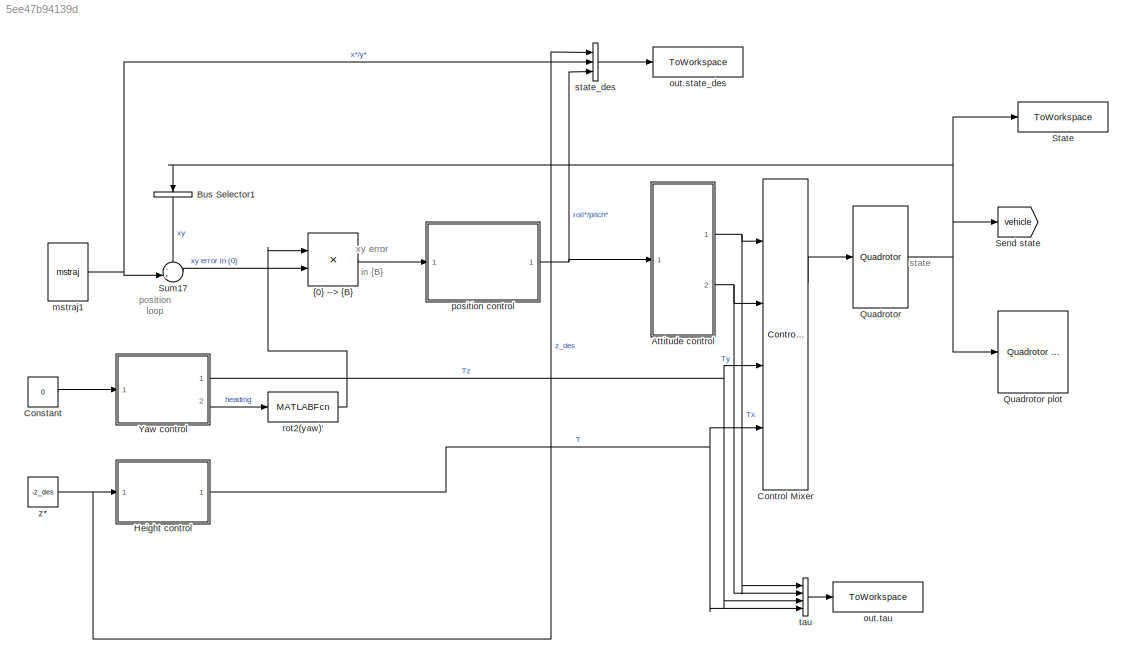
MODEL slx_5ee47b94139d
KIND model
CONFIG AbsTol = auto
CONFIG EnableMultiTasking = off
CONFIG FixedStep = auto
CONFIG InitFcn = Kp_yaw = 50;\nKd_yaw = 0.5;\nKp_height = 1000;\nKd_height = 0.1;\nKp_vel = 0.15;\nKd_vel = 0.85;\nKp_attitude = 2;\nKd_attitude = 0.3;\n\nz_des = 5;\n\nsample_interval = 0.05;\nmdl_quadrotor;
CONFIG MaxStep = auto
CONFIG MinStep = auto
CONFIG RelTol = 1e-3
CONFIG SampleTimeConstraint = Unconstrained
CONFIG SolverName = VariableStepAuto
CONFIG StartTime = 0.0
CONFIG StopTime = 119.35
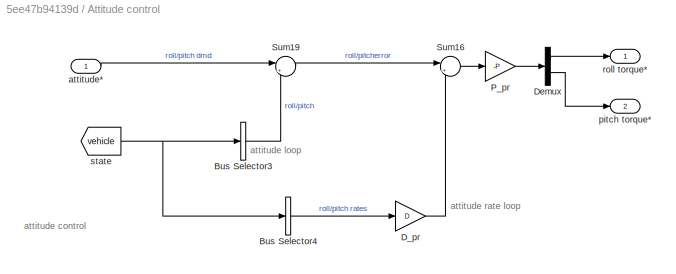
BLOCK [SubSystem] Attitude control
  Ports = [1, 2]
BLOCK [BusSelector] Attitude control/Bus Selector3
  OutputAsBus = on
  OutputSignals = roll,pitch
  Ports = [1, 1]
BLOCK [BusSelector] Attitude control/Bus Selector4
  OutputAsBus = on
  OutputSignals = droll,dpitch
  Ports = [1, 1]
BLOCK [Gain] Attitude control/D_pr
  Gain = D
BLOCK [Demux] Attitude control/Demux
  Outputs = 2
  Ports = [1, 2]
BLOCK [Gain] Attitude control/P_pr
  Gain = -P
BLOCK [Sum] Attitude control/Sum16
  Inputs = |+-
  Ports = [2, 1]
BLOCK [Sum] Attitude control/Sum19
  Inputs = |+-
  Ports = [2, 1]
BLOCK [Inport] Attitude control/attitude*
BLOCK [Outport] Attitude control/pitch torque*
  Port = 2
BLOCK [Outport] Attitude control/roll torque*
BLOCK [From] Attitude control/state
  GotoTag = vehicle
  IconDisplay = Tag and signal name
  TagVisibility = global
BLOCK [BusSelector] Bus Selector1
  NameLocation = left
  OutputAsBus = on
  OutputSignals = X,Y
  Ports = [1, 1]
BLOCK [Constant] Constant
  Value = 0
BLOCK [Reference] Control Mixer  REF=roblocks/Vehicles/Control Mixer 4  (lib defined in mdl_2a292b13c81b, mdl_69400f8cfe22, +12 more)
  Ports = [4, 2]
  SourceBlock = roblocks/Vehicles/Control Mixer 4
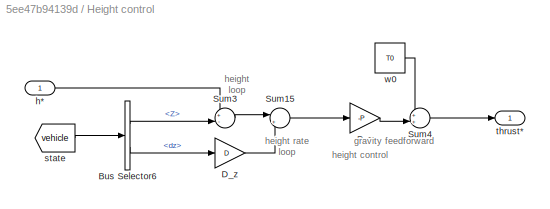
BLOCK [SubSystem] Height control
  Ports = [1, 1]
BLOCK [BusSelector] Height control/Bus Selector6
  OutputSignals = Z,dz
  Ports = [1, 2]
BLOCK [Gain] Height control/D_z
  Gain = D
BLOCK [Gain] Height control/P_z
  Gain = -P
BLOCK [Sum] Height control/Sum15
  Inputs = |+-
  Ports = [2, 1]
BLOCK [Sum] Height control/Sum3
  Inputs = +-|
  Ports = [2, 1]
BLOCK [Sum] Height control/Sum4
  Inputs = ++|
  Ports = [2, 1]
BLOCK [Inport] Height control/h*
BLOCK [From] Height control/state
  GotoTag = vehicle
  IconDisplay = Tag and signal name
  TagVisibility = global
BLOCK [Outport] Height control/thrust*
BLOCK [Constant] Height control/w0
  SampleTime = 0
  Value = T0
BLOCK [Reference] Quadrotor  REF=roblocks/Vehicles/Quadrotor  (lib defined in mdl_2a292b13c81b, mdl_69400f8cfe22, +12 more)
  Ports = [1, 1]
  SourceBlock = roblocks/Vehicles/Quadrotor
BLOCK [Reference] Quadrotor plot  REF=roblocks/Vehicles/Quadrotor plot  (lib defined in mdl_2a292b13c81b, mdl_69400f8cfe22, +12 more)
  Commented = on
  Ports = [1]
  SourceBlock = roblocks/Vehicles/Quadrotor plot
BLOCK [Goto] Send state
  GotoTag = vehicle
  IconDisplay = Tag and signal name
  TagVisibility = global
BLOCK [ToWorkspace] State
  FixptAsFi = on
  MaxDataPoints = inf
  Ports = [1]
  SampleTime = -1
  SaveFormat = Timeseries
  VariableName = state
BLOCK [Sum] Sum17
  Inputs = -+|
  Ports = [2, 1]
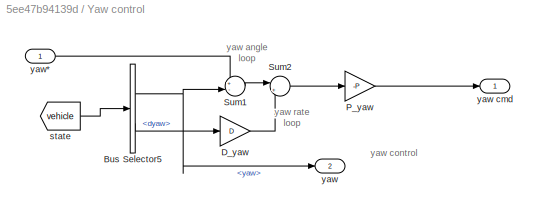
BLOCK [SubSystem] Yaw control
  Ports = [1, 2]
BLOCK [BusSelector] Yaw control/Bus Selector5
  OutputSignals = yaw,dyaw
  Ports = [1, 2]
BLOCK [Gain] Yaw control/D_yaw
  Gain = D
BLOCK [Gain] Yaw control/P_yaw
  Gain = -P
BLOCK [Sum] Yaw control/Sum1
  Inputs = +-|
  Ports = [2, 1]
BLOCK [Sum] Yaw control/Sum2
  Inputs = |+-
  Ports = [2, 1]
BLOCK [From] Yaw control/state
  GotoTag = vehicle
  IconDisplay = Tag and signal name
  TagVisibility = global
BLOCK [Outport] Yaw control/yaw
  Port = 2
BLOCK [Outport] Yaw control/yaw cmd
BLOCK [Inport] Yaw control/yaw*
BLOCK [Reference] mstraj1  REF=roblocks/Toolbox/mstraj  (lib defined in mdl_2a292b13c81b, mdl_69400f8cfe22, +12 more)
  Ports = [0, 1]
  SourceBlock = roblocks/Toolbox/mstraj
  SourceType = Trajectory generator
BLOCK [ToWorkspace] out.state_des
  FixptAsFi = on
  MaxDataPoints = inf
  Ports = [1]
  SampleTime = -1
  SaveFormat = Timeseries
  VariableName = state_des
BLOCK [ToWorkspace] out.tau
  FixptAsFi = on
  MaxDataPoints = inf
  Ports = [1]
  SampleTime = -1
  SaveFormat = Timeseries
  VariableName = tau
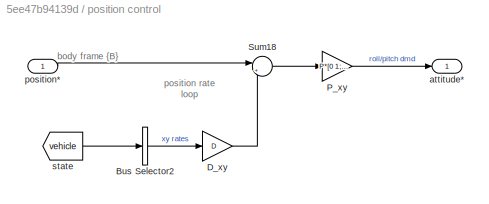
BLOCK [SubSystem] position control
  Ports = [1, 1]
BLOCK [BusSelector] position control/Bus Selector2
  OutputAsBus = on
  OutputSignals = dx,dy
  Ports = [1, 1]
BLOCK [Gain] position control/D_xy
  Gain = D
BLOCK [Gain] position control/P_xy
  Gain = P*[0 1; -1 0]
  Multiplication = Matrix(K*u)
BLOCK [Sum] position control/Sum18
  Inputs = |+-
  Ports = [2, 1]
BLOCK [Outport] position control/attitude*
BLOCK [Inport] position control/position*
BLOCK [From] position control/state
  GotoTag = vehicle
  IconDisplay = Tag and signal name
  TagVisibility = global
BLOCK [MATLABFcn] rot2(yaw)'
  MATLABFcn = rot2(u)'
  Output1D = off
  OutputDimensions = [2 2]
  Ports = [1, 1]
BLOCK [BusCreator] state_des
  DisplayOption = bar
  InheritFromInputs = on
  Inputs = 3
  Ports = [3, 1]
BLOCK [BusCreator] tau
  DisplayOption = bar
  InheritFromInputs = on
  Inputs = 4
  Ports = [4, 1]
BLOCK [Constant] z*
  SampleTime = 0
  Value = -z_des
BLOCK [Product] {0} --> {B}
  Multiplication = Matrix(*)
  Ports = [2, 1]
  RndMeth = Zero
ANNOTATION (root): position loop
ANNOTATION (root): state
ANNOTATION (root): xy error in {B}
ANNOTATION Attitude control: attitude rate loop
ANNOTATION Attitude control: attitude loop
ANNOTATION Attitude control: attitude control
ANNOTATION Height control: height control
ANNOTATION Height control: gravity feedforward
ANNOTATION Height control: height loop
ANNOTATION Height control: height rate loop
ANNOTATION Yaw control: yaw control
ANNOTATION Yaw control: yaw angle loop
ANNOTATION Yaw control: yaw rate loop
ANNOTATION position control: body frame {B}
ANNOTATION position control: position rate loop
LINE Attitude control/Bus Selector3:1 -> Attitude control/Sum19:2
LINE Attitude control/Bus Selector4:1 -> Attitude control/D_pr:1
LINE Attitude control/D_pr:1 -> Attitude control/Sum16:2
LINE Attitude control/Demux:1 -> Attitude control/roll torque*:1
LINE Attitude control/Demux:2 -> Attitude control/pitch torque*:1
LINE Attitude control/P_pr:1 -> Attitude control/Demux:1
LINE Attitude control/Sum16:1 -> Attitude control/P_pr:1
LINE Attitude control/Sum19:1 -> Attitude control/Sum16:1
LINE Attitude control/attitude*:1 -> Attitude control/Sum19:1
NET Attitude control/state:1 -> Attitude control/Bus Selector3:1, Attitude control/Bus Selector4:1
NET Attitude control:1 -> Control Mixer:1, tau:1
NET Attitude control:2 -> Control Mixer:2, tau:2
LINE Bus Selector1:1 -> Sum17:1
LINE Constant:1 -> Yaw control:1
LINE Control Mixer:1 -> Quadrotor:1
LINE Height control/Bus Selector6:1 -> Height control/Sum3:2
LINE Height control/Bus Selector6:2 -> Height control/D_z:1
LINE Height control/D_z:1 -> Height control/Sum15:2
LINE Height control/P_z:1 -> Height control/Sum4:2
LINE Height control/Sum15:1 -> Height control/P_z:1
LINE Height control/Sum3:1 -> Height control/Sum15:1
LINE Height control/Sum4:1 -> Height control/thrust*:1
LINE Height control/h*:1 -> Height control/Sum3:1
LINE Height control/state:1 -> Height control/Bus Selector6:1
LINE Height control/w0:1 -> Height control/Sum4:1
NET Height control:1 -> Control Mixer:4, tau:4
NET Quadrotor:1 -> Bus Selector1:1, Quadrotor plot:1, Send state:1, State:1
LINE Sum17:1 -> {0} --> {B}:2
NET Yaw control/Bus Selector5:1 -> Yaw control/Sum1:2, Yaw control/yaw:1
LINE Yaw control/Bus Selector5:2 -> Yaw control/D_yaw:1
LINE Yaw control/D_yaw:1 -> Yaw control/Sum2:2
LINE Yaw control/P_yaw:1 -> Yaw control/yaw cmd:1
LINE Yaw control/Sum1:1 -> Yaw control/Sum2:1
LINE Yaw control/Sum2:1 -> Yaw control/P_yaw:1
LINE Yaw control/state:1 -> Yaw control/Bus Selector5:1
LINE Yaw control/yaw*:1 -> Yaw control/Sum1:1
NET Yaw control:1 -> Control Mixer:3, tau:3
LINE Yaw control:2 -> rot2(yaw)':1
NET mstraj1:1 -> Sum17:2, state_des:2
LINE position control/Bus Selector2:1 -> position control/D_xy:1
LINE position control/D_xy:1 -> position control/Sum18:2
LINE position control/P_xy:1 -> position control/attitude*:1
LINE position control/Sum18:1 -> position control/P_xy:1
LINE position control/position*:1 -> position control/Sum18:1
LINE position control/state:1 -> position control/Bus Selector2:1
NET position control:1 -> Attitude control:1, state_des:3
LINE rot2(yaw)':1 -> {0} --> {B}:1
LINE state_des:1 -> out.state_des:1
LINE tau:1 -> out.tau:1
NET z*:1 -> Height control:1, state_des:1
LINE {0} --> {B}:1 -> position control:1
note: NET lines group one-source signal fan-out (src -> all destinations, sorted); 1:1 wires keep LINE
